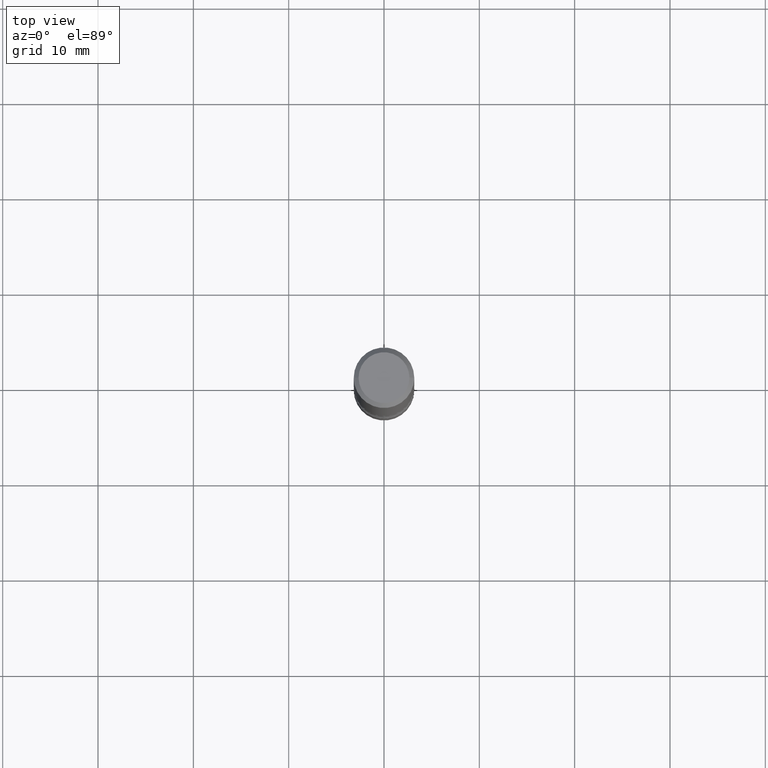
[diagram: clean part render]
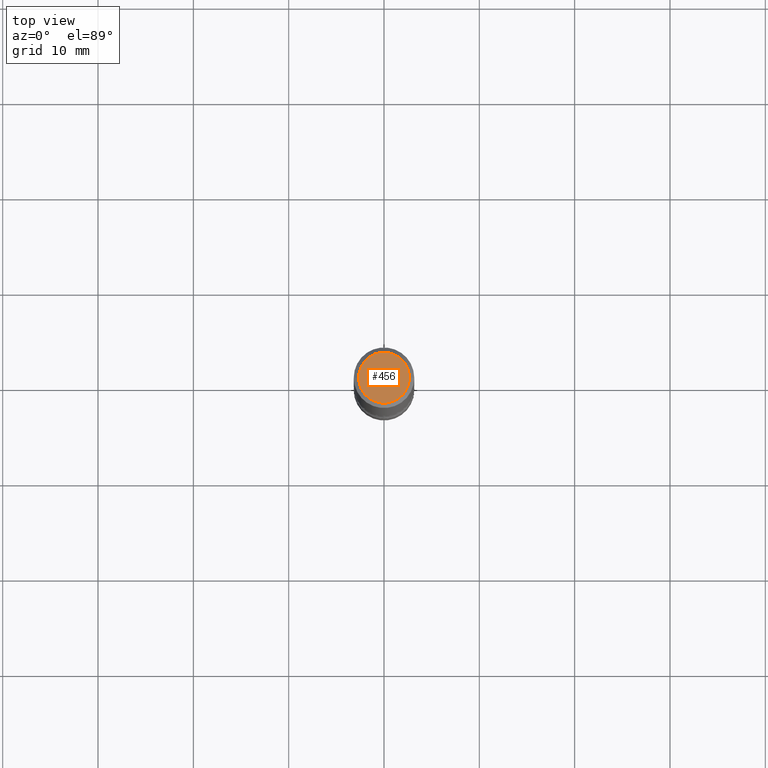
[diagram: same view with one face highlighted and labeled with its STEP entity id]
A machine part, top view. The second image highlights one B-rep face of the part: STEP entity #456.
In plain terms, the highlighted planar face has unit normal (0, -0, -1).
Its self-contained STEP definition (entity closure, byte-faithful):
#19 = EDGE_CURVE ( 'NONE', #352, #96, #131, .T. ) ;
#72 = AXIS2_PLACEMENT_3D ( 'NONE', #105, #102, #107 ) ;
#96 = VERTEX_POINT ( 'NONE', #279 ) ;
#102 = DIRECTION ( 'NONE',  ( 2.438088387897960049E-29, -3.491481338843145188E-15, -1.000000000000000000 ) ) ;
#104 = EDGE_CURVE ( 'NONE', #96, #352, #451, .T. ) ;
#105 = CARTESIAN_POINT ( 'NONE',  ( 7.332110811570564466E-16, 0.1049999999999997879, -3.644712843334793412E-16 ) ) ;
#107 = DIRECTION ( 'NONE',  ( -1.000000000000000000, 6.982962677686265922E-15, -4.876176775795935793E-29 ) ) ;
#115 = CARTESIAN_POINT ( 'NONE',  ( -1.043851414335219820E-46, 1.490343170380447200E-32, 4.268512490100411279E-18 ) ) ;
#131 = CIRCLE ( 'NONE', #432, 0.1049999999999997879 ) ;
#149 = DIRECTION ( 'NONE',  ( 1.000000000000000000, -6.982962677686265922E-15, 4.876206205277404118E-29 ) ) ;
#217 = ORIENTED_EDGE ( 'NONE', *, *, #104, .T. ) ;
#231 = PLANE ( 'NONE',  #72 ) ;
#243 = DIRECTION ( 'NONE',  ( -2.445468806185136597E-29, 3.491481338843145583E-15, 1.000000000000000000 ) ) ;
#279 = CARTESIAN_POINT ( 'NONE',  ( 0.1049999999999997879, -8.238720831321562839E-16, 4.268512490105855498E-18 ) ) ;
#322 = DIRECTION ( 'NONE',  ( 1.000000000000000000, -6.982962677686265922E-15, 4.876206205277404118E-29 ) ) ;
#352 = VERTEX_POINT ( 'NONE', #513 ) ;
#428 = ORIENTED_EDGE ( 'NONE', *, *, #19, .T. ) ;
#432 = AXIS2_PLACEMENT_3D ( 'NONE', #476, #529, #149 ) ;
#435 = FACE_OUTER_BOUND ( 'NONE', #534, .T. ) ;
#450 = AXIS2_PLACEMENT_3D ( 'NONE', #115, #243, #322 ) ;
#451 = CIRCLE ( 'NONE', #450, 0.1049999999999997879 ) ;
#456 = ADVANCED_FACE ( 'NONE', ( #435 ), #231, .F. ) ;
#476 = CARTESIAN_POINT ( 'NONE',  ( -1.043851414335219820E-46, 1.490343170380447200E-32, 4.268512490100411279E-18 ) ) ;
#513 = CARTESIAN_POINT ( 'NONE',  ( -0.1049999999999997879, 7.681258945454876027E-16, 4.268512490095161194E-18 ) ) ;
#529 = DIRECTION ( 'NONE',  ( -2.445468806185136597E-29, 3.491481338843145583E-15, 1.000000000000000000 ) ) ;
#534 = EDGE_LOOP ( 'NONE', ( #428, #217 ) ) ;